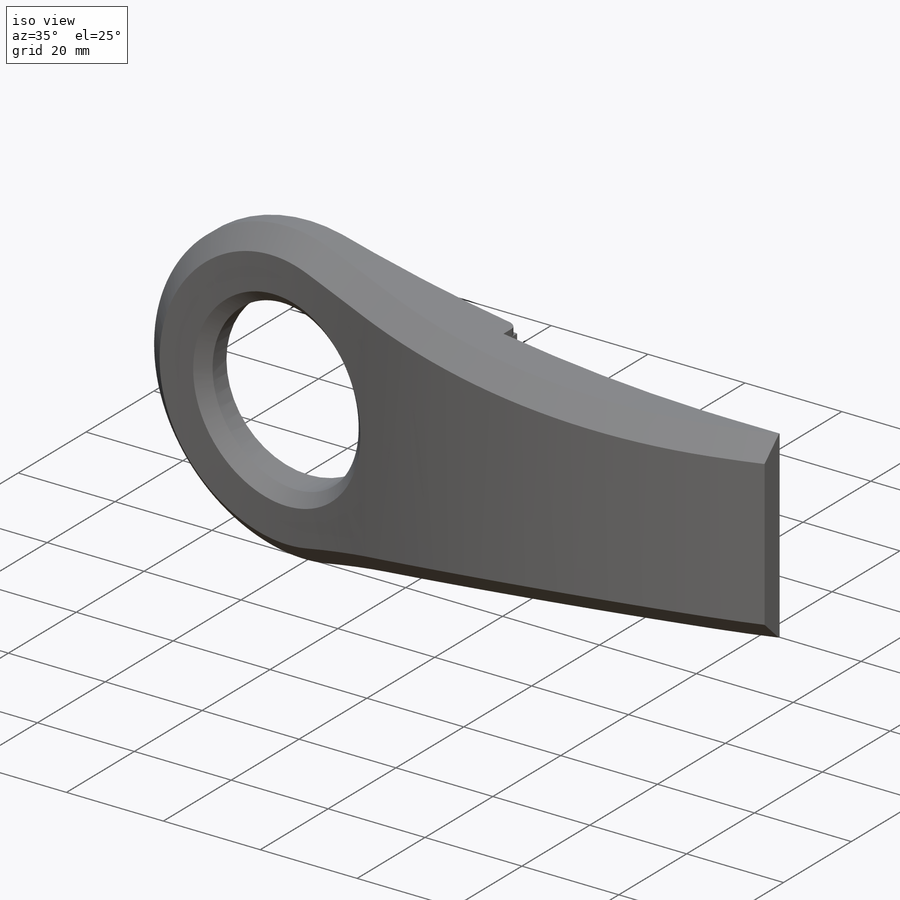
[diagram: iso view]
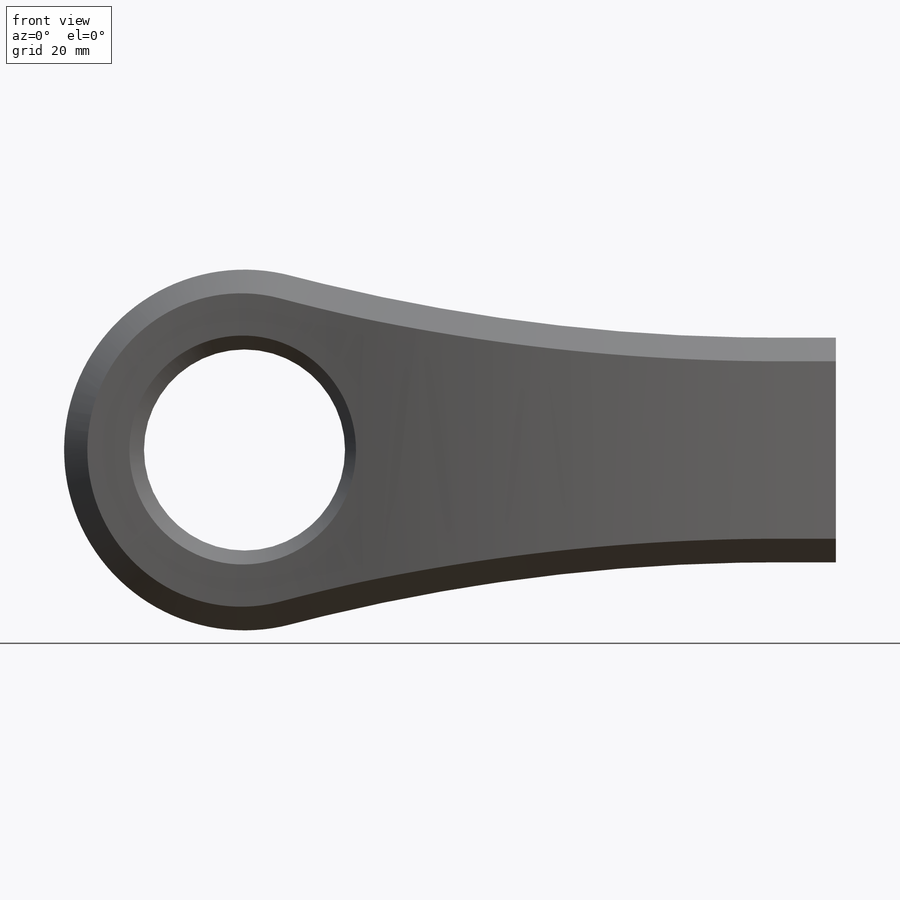
[diagram: front view]
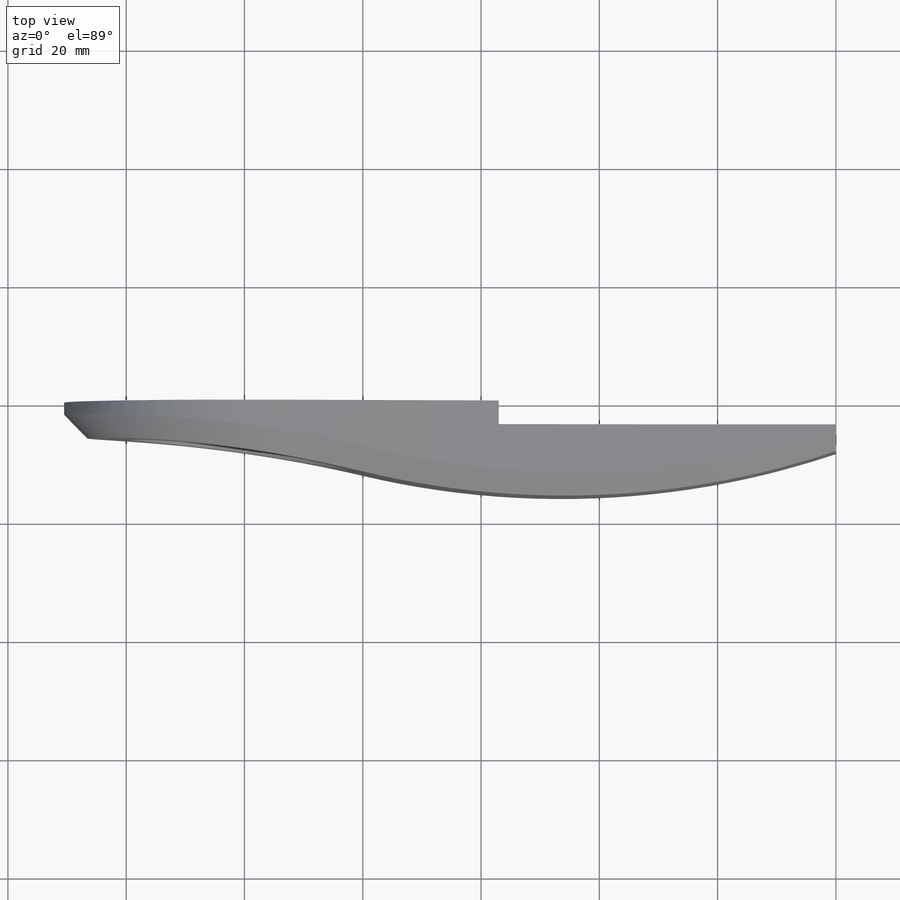
[diagram: top view]
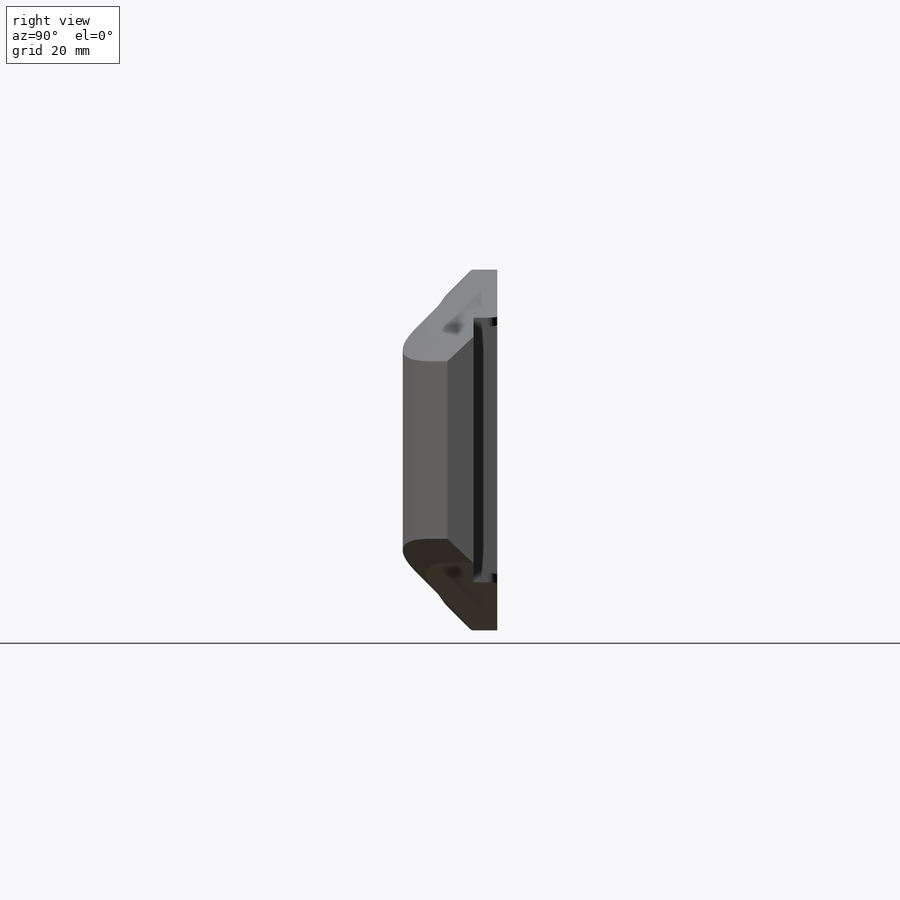
[diagram: right view]
SOLIDWORKS PART (.sldprt)
format: sldprt  version: not decoded by parser v0  size: 566,784 bytes
history: native  units: mm
features: sketch x12, cut_extrude x5, plane x3, extrude x3, chamfer x2, hole x2, material x1 (+9 scaffold rows collapsed)
feature tree (37):
  scaffold x9  (default folders/planes/origin — collapsed)
  material  "PVC hart"
  plane  "Ebene vorne"
  plane  "Ebene oben"
  plane  "Ebene rechts"
  sketch  "Skizze1"  dims[c1.D1=40.0mm c1.D2=37.0mm c1.D3=50.0mm c2.D2=37.0mm c2.D4=40.0mm c2.D1=32.0mm c2.D3=50.0mm c2.D5=61.0mm c2.D6=~327.423913mm c3.D4=325.0mm c3.D2=~3.833712mm c4.D4=~49.608459mm c4.D2=4.0mm c5.D4=3.0mm c5.D1=120.0mm c5.D2=38.0mm c6.D4=30.0mm c6.D3=4.5mm c6.D6=~30.310257mm]
  extrude  "Aufsatz-Linear austragen2"  Depth=20mm
  sketch  "Skizze2"  dims[D1=~18.672447mm]
  cut_extrude  "Schnitt-Linear austragen1"  [1 undecoded]
  sketch  "Skizze3"  dims[c1.D1=6.0mm c1.D2=13.0mm c1.D3=20.0mm c1.D4=~67.993286mm c1.D5=~80.006714mm c1.D6=50.5mm c2.D2=80.0mm c2.D4=~12.993025mm c3.D2=16.0mm]
  cut_extrude  "Schnitt-Linear austragen6"  [1 undecoded]
  chamfer  "Fase1"  Distance=2.5mm Angle=45deg
  chamfer  "Fase2"  Distance=4mm Angle=45deg
  hole  "Formsenkung für M3 Senkschraube mit Innensechskant1"  Diameter=1.6mm Depth=13.5mm
  sketch  "Skizze4"  dims[c1.D1=1.9mm c1.D3=17.0mm c2.D3=22.5deg]
  sketch  "Skizze5"  dims[Bohrerdurchmesser=1.6mm Bohrungstiefe=13.5mm Senkdurchmesser (Oben)=3.0mm Senkwinkel (Oben)=90.0deg Spitzenwinkel=118.0deg]
  sketch  "Skizze7"  dims[D1=4.0mm D2=43.0mm]
  cut_extrude  "Schnitt-Linear austragen9"  [1 undecoded]
  sketch  "Skizze10"  dims[D1=1.6mm]
  cut_extrude  "Schnitt-Linear austragen10"  Depth=1.5mm
  hole  "Formsenkung für M3 Senkschraube mit Innensechskant2"  Diameter=1.6mm Depth=6mm
  sketch  "Skizze8"  dims[D1=18.0mm D2=30.0mm D3=10.0mm]
  sketch  "Skizze9"  dims[Bohrerdurchmesser=1.6mm Bohrungstiefe=6.0mm Senkdurchmesser (Oben)=3.5mm Senkwinkel (Oben)=90.0deg Spitzenwinkel=118.0deg]
  cut_extrude  "Schnitt-Linear austragen11"  [1 undecoded]
  sketch  "Skizze10<2>"  dims[D1=1.5mm]
  sketch  "Skizze11"  dims[D1=1.0mm]
  extrude  "Aufsatz-Linear austragen3"  [1 undecoded]
  sketch  "Skizze12"  dims[D1=20.0mm D2=4.0mm D3=15.0mm]
  extrude  "Druck-Ohren"  Depth=1mm
decode coverage: 19 of 24 modeling features carry decoded parameters
note: ~ marks probable driven/reference dimensions
note: 5 parameter values undecoded
summary: no parameter record found for 5 features
note: suppression state not decoded; provenance and decode notes live in map.json
